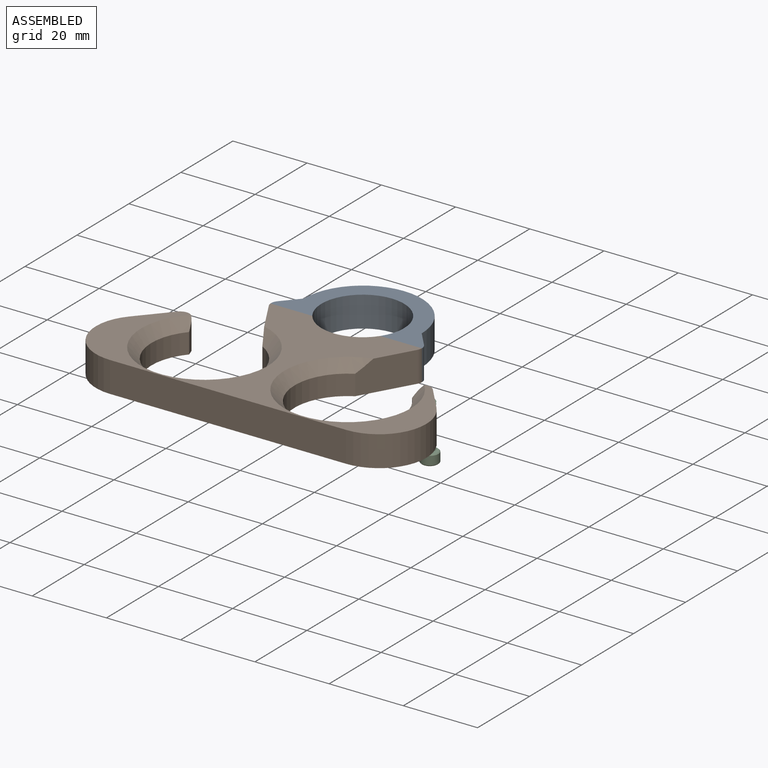
[diagram: assembled view]
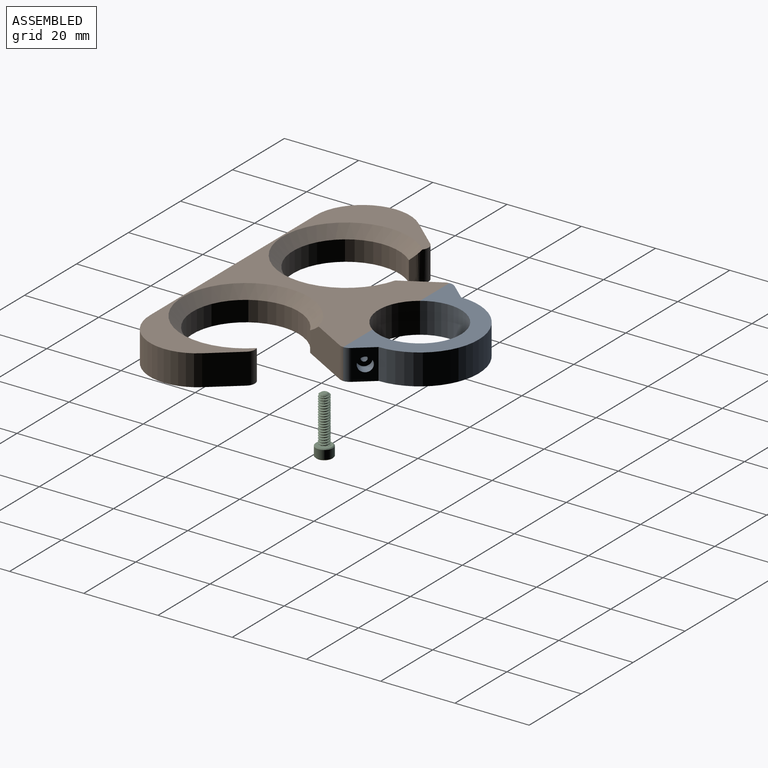
[diagram: assembled view, second angle]
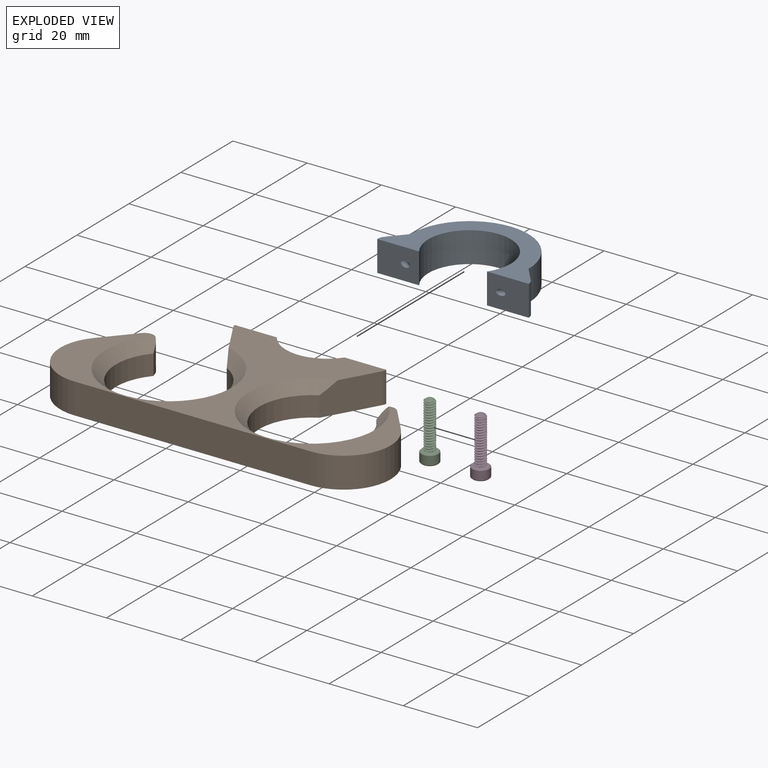
[diagram: exploded view]
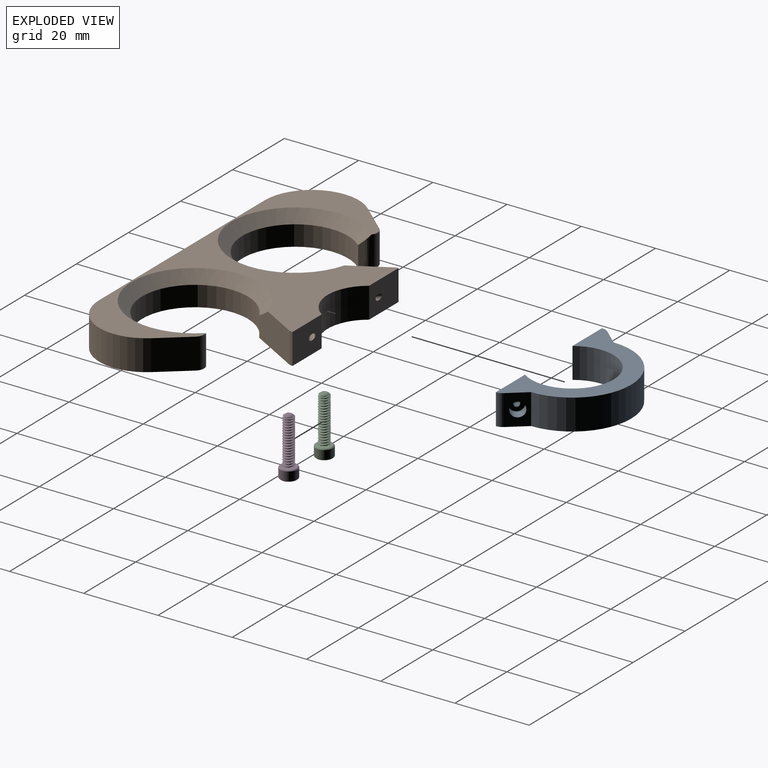
[diagram: exploded view, second angle]
ASSEMBLY  parts=4 mates=2
PART A: 17 faces, bbox 41.2x23.9x8.7 mm
  f0: cylinder r=11.14mm len=22.28mm, axis (0,0,-1), area 400.4mm2, adj f1,f2,f11,f12
  f1: plane 40.82x22.23mm, normal (0,0,1), area 302.6mm2, adj f0,f3,f4,f6,f7,f8,f11,f12
  f2: plane 40.82x22.23mm, normal (0,0,-1), area 302.6mm2, adj f0,f3,f4,f6,f7,f8,f11,f12
  f3: cylinder r=2.54mm len=8.26mm, axis (0,0,-1), area 14.9mm2, adj f1,f2,f6,f12
  f4: cylinder r=2.54mm len=8.26mm, axis (0,0,1), area 16.7mm2, adj f1,f2,f8,f11
  f5: cylinder r=0.79mm len=4.23mm, axis (0.77,0.64,0), area 16.1mm2, adj f9,f12
  f6: plane 8.26x4.69mm, normal (0.77,0.64,0), area 38.9mm2, adj f1,f2,f3,f7,f10
  f7: cylinder r=15.88mm len=31.75mm, axis (0,0,-1), area 411.7mm2, adj f1,f2,f6,f8
  f8: plane 8.26x4.49mm, normal (-0.75,0.66,0), area 49.3mm2, adj f1,f2,f4,f7
  f9: plane 3.81x2.93mm, normal (0.77,0.64,0), area 9.4mm2, adj f5,f10
  f10: cylinder r=1.91mm len=4.96mm, axis (0.77,0.64,0), area 38mm2, adj f6,f9
  f11: plane 11.29x8.26mm, normal (0,-1,0), area 90.1mm2, adj f0,f1,f2,f4,f16
  f12: plane 11.62x8.66mm, normal (0,-1,0), area 89.5mm2, adj f0,f1,f2,f3,f5
  f13: cylinder r=1.91mm len=4.96mm, axis (-0.77,0.64,0), area 38mm2, adj f14,f15
  f14: plane 3.81x2.93mm, normal (-0.77,0.64,0), area 9.4mm2, adj f13,f16
  f15: plane 3.81x2.93mm, normal (0.77,-0.64,0), area 11.4mm2, adj f13
  f16: cylinder r=0.79mm len=4.24mm, axis (-0.77,0.64,0), area 16.1mm2, adj f11,f14
PART B: 26 faces, bbox 89.5x46.1x8.7 mm
  f0: cone r=0mm half-angle=59deg, axis (-0.77,0.64,0), area 2.3mm2, adj f1
  f1: cylinder r=0.79mm len=6.58mm, axis (-0.77,0.64,0), area 31.4mm2, adj f0,f2
  f2: plane 11.29x8.26mm, normal (0,1,0), area 90.1mm2, adj f1,f17,f18,f19,f20
  f3: cylinder r=14.29mm len=28.58mm, axis (0,0,-1), area 385.3mm2, adj f4,f15,f18,f25
  f4: plane 6.9x1.55mm, normal (0.95,0.32,0), area 9.8mm2, adj f3,f5,f18,f25
  f5: cylinder r=2.54mm len=8.26mm, axis (0,0,1), area 42.9mm2, adj f4,f6,f18,f19,f25
  f6: plane 8.26x8.17mm, normal (-0.75,0.66,0), area 89.8mm2, adj f5,f7,f18,f19
  f7: cylinder r=12.7mm len=21.08mm, axis (0,0,-1), area 240.3mm2, adj f6,f8,f18,f19
  f8: plane 63.63x8.26mm, normal (0,-1,0), area 525.2mm2, adj f7,f9,f18,f19
  f9: cylinder r=12.7mm len=20.83mm, axis (0,0,-1), area 237.5mm2, adj f8,f10,f18,f19
  f10: plane 8.26x7.53mm, normal (0.77,0.64,0), area 80.9mm2, adj f9,f11,f18,f19
  f11: cylinder r=2.54mm len=8.26mm, axis (0,0,-1), area 41.9mm2, adj f10,f12,f18,f19,f24
  f12: plane 6.08x0.67mm, normal (-0.95,0.32,0), area 4.1mm2, adj f11,f13,f18,f24
  f13: cylinder r=14.29mm len=28.58mm, axis (0,0,-1), area 385.3mm2, adj f12,f14,f18,f24
  f14: plane 13.67x8.68mm, normal (0.87,-0.49,0), area 119.2mm2, adj f13,f16,f18,f19,f24
  f15: plane 13.82x8.68mm, normal (-0.87,-0.49,0), area 120.6mm2, adj f3,f17,f18,f19,f25
  f16: cylinder r=2.54mm len=8.26mm, axis (0,0,-1), area 10.5mm2, adj f14,f18,f19,f21
  f17: cylinder r=2.54mm len=8.26mm, axis (0,0,1), area 9.3mm2, adj f2,f15,f18,f19
  f18: plane 89.03x44.5mm, normal (0,0,-1), area 1613.2mm2, adj f2,f3,f4,f5,f6,f7,f8,f9
  f19: plane 89.03x44.5mm, normal (0,0,1), area 1165.9mm2, adj f2,f5,f6,f7,f8,f9,f10,f11
  f20: cylinder r=11.14mm len=18.3mm, axis (0,0,-1), area 177.3mm2, adj f2,f18,f19,f21
  f21: plane 11.62x8.66mm, normal (0,1,0), area 89.5mm2, adj f16,f18,f19,f20,f23
  f22: cone r=0mm half-angle=59deg, axis (0.77,0.64,0), area 2.3mm2, adj f23
  f23: cylinder r=0.79mm len=6.58mm, axis (0.77,0.64,0), area 31.4mm2, adj f21,f22
  f24: cone r=17.08mm half-angle=45deg, axis (0,0,1), area 315.1mm2, adj f11,f12,f13,f14,f19
  f25: cone r=14.29mm half-angle=45deg, axis (0,0,1), area 315.9mm2, adj f3,f4,f5,f15,f19
PART C: 104 faces, bbox 5.2x5.2x16.1 mm
  f0: plane 2.75x2.38mm, normal (0,0,-1), area 4.9mm2, adj f1,f99,f100,f101,f102,f103
  f1: plane 2.31x1.71mm, normal (-0.5,0.87,0), area 2.3mm2, adj f0,f2,f99,f103
  f2: cone r=0mm half-angle=45deg, axis (0,0,-1), area 0mm2, adj f1,f3
  f3: plane 4.63x4.63mm, normal (0,0,-1), area 7.8mm2, adj f2,f4,f94,f95,f96,f97,f98
  f4: cone r=0mm half-angle=45deg, axis (0,0,1), area 4.6mm2, adj f3,f5
  f5: cylinder r=2.32mm len=4.65mm, axis (0,0,1), area 34.8mm2, adj f4,f6
  f6: cone r=0mm half-angle=45deg, axis (0,0,-1), area 4.6mm2, adj f5,f7
  f7: plane 4.43x4.43mm, normal (0,0,1), area 9mm2, adj f6,f8,f91,f92,f93
  f8: cylinder r=1.42mm len=1.42mm, axis (0,0,1), area 0.1mm2, adj f7,f9,f91,f93
  f9: cylinder r=1.42mm len=2.85mm, axis (0,0,1), area 0.4mm2, adj f8,f10,f91,f93
  f10: cylinder r=1.42mm len=2.85mm, axis (0,0,1), area 0.4mm2, adj f9,f11,f91,f93
  f11: cylinder r=1.42mm len=2.85mm, axis (0,0,1), area 0.4mm2, adj f10,f12,f91,f93
  f12: cylinder r=1.42mm len=2.85mm, axis (0,0,1), area 0.4mm2, adj f11,f13,f91,f93
  f13: cylinder r=1.42mm len=2.85mm, axis (0,0,1), area 0.4mm2, adj f12,f14,f91,f93
  f14: cylinder r=1.42mm len=2.85mm, axis (0,0,1), area 0.4mm2, adj f13,f15,f91,f93
  f15: cylinder r=1.42mm len=2.85mm, axis (0,0,1), area 0.4mm2, adj f14,f16,f91,f93
  f16: cylinder r=1.42mm len=2.85mm, axis (0,0,1), area 0.4mm2, adj f15,f17,f91,f93
  f17: cylinder r=1.42mm len=2.85mm, axis (0,0,1), area 0.4mm2, adj f16,f18,f91,f93
  f18: cylinder r=1.42mm len=2.85mm, axis (0,0,1), area 0.4mm2, adj f17,f19,f91,f93
  f19: cylinder r=1.42mm len=2.85mm, axis (0,0,1), area 0.4mm2, adj f18,f20,f91,f93
  f20: cylinder r=1.42mm len=2.85mm, axis (0,0,1), area 0.4mm2, adj f19,f21,f91,f93
  f21: cylinder r=1.42mm len=2.85mm, axis (0,0,1), area 0.4mm2, adj f20,f22,f91,f93
  f22: cylinder r=1.42mm len=2.85mm, axis (0,0,1), area 0.4mm2, adj f21,f23,f91,f93
  f23: cylinder r=1.42mm len=2.85mm, axis (0,0,1), area 0.4mm2, adj f22,f24,f91,f93
  f24: cylinder r=1.42mm len=2.85mm, axis (0,0,1), area 0.4mm2, adj f23,f25,f91,f93
  f25: cylinder r=1.42mm len=2.85mm, axis (0,0,1), area 0.4mm2, adj f24,f26,f91,f93
  f26: cylinder r=1.42mm len=2.85mm, axis (0,0,1), area 0.4mm2, adj f25,f27,f91,f93
  f27: cylinder r=1.42mm len=2.85mm, axis (0,0,1), area 0.4mm2, adj f26,f28,f91,f93
  f28: cylinder r=1.42mm len=2.85mm, axis (0,0,1), area 0.4mm2, adj f27,f29,f91,f93
  f29: cylinder r=1.42mm len=2.85mm, axis (0,0,1), area 0.4mm2, adj f28,f30,f91,f93
  f30: cylinder r=1.42mm len=2.85mm, axis (0,0,1), area 0.4mm2, adj f29,f31,f91,f93
  f31: cylinder r=1.42mm len=2.85mm, axis (0,0,1), area 0.4mm2, adj f30,f32,f91,f93
  f32: cylinder r=1.42mm len=2.85mm, axis (0,0,1), area 0.4mm2, adj f31,f33,f91,f93
  f33: cylinder r=1.42mm len=2.85mm, axis (0,0,1), area 0.4mm2, adj f32,f34,f91,f93
  f34: cylinder r=1.42mm len=2.85mm, axis (0,0,1), area 0.4mm2, adj f33,f35,f91,f93
  f35: cylinder r=1.42mm len=2.85mm, axis (0,0,1), area 0.4mm2, adj f34,f36,f91,f93
  f36: cylinder r=1.42mm len=2.85mm, axis (0,0,1), area 0.4mm2, adj f35,f37,f91,f93
  f37: cylinder r=1.42mm len=2.85mm, axis (0,0,1), area 0.4mm2, adj f36,f38,f91,f93
  f38: cylinder r=1.42mm len=2.85mm, axis (0,0,1), area 0.4mm2, adj f37,f39,f91,f93
  f39: cylinder r=1.42mm len=2.85mm, axis (0,0,1), area 0.4mm2, adj f38,f40,f91,f93
  f40: cylinder r=1.42mm len=2.85mm, axis (0,0,1), area 0.4mm2, adj f39,f41,f91,f93
  f41: cylinder r=1.42mm len=2.85mm, axis (0,0,1), area 0.4mm2, adj f40,f42,f91,f93
  f42: cylinder r=1.42mm len=2.85mm, axis (0,0,1), area 0.4mm2, adj f41,f43,f91,f93
  f43: cylinder r=1.42mm len=2.85mm, axis (0,0,1), area 0.4mm2, adj f42,f44,f91,f93
  f44: cylinder r=1.42mm len=2.85mm, axis (0,0,1), area 0.4mm2, adj f43,f45,f91,f93
  f45: cylinder r=1.42mm len=2.85mm, axis (0,0,1), area 0.4mm2, adj f44,f46,f91,f93
  f46: cylinder r=1.42mm len=2.85mm, axis (0,0,1), area 0.4mm2, adj f45,f47,f91,f93
  f47: cylinder r=1.42mm len=1.1mm, axis (0,0,1), area 0.1mm2, adj f46,f48,f91,f93
  f48: cone r=0mm half-angle=55deg, axis (0,0,-1), area 2.2mm2, adj f47,f49,f89,f90,f91,f93
  f49: cylinder r=1.01mm len=0.57mm, axis (0,0,-1), area 0mm2, adj f48,f50,f93
  f50: cylinder r=1.01mm len=2.02mm, axis (0,0,-1), area 0.3mm2, adj f49,f51,f89,f91,f93
  f51: cylinder r=1.01mm len=2.02mm, axis (0,0,-1), area 0.3mm2, adj f50,f52,f91,f93
  f52: cylinder r=1.01mm len=2.02mm, axis (0,0,-1), area 0.3mm2, adj f51,f53,f91,f93
  f53: cylinder r=1.01mm len=2.02mm, axis (0,0,-1), area 0.3mm2, adj f52,f54,f91,f93
  f54: cylinder r=1.01mm len=2.02mm, axis (0,0,-1), area 0.3mm2, adj f53,f55,f91,f93
  f55: cylinder r=1.01mm len=2.02mm, axis (0,0,-1), area 0.3mm2, adj f54,f56,f91,f93
  f56: cylinder r=1.01mm len=2.02mm, axis (0,0,-1), area 0.3mm2, adj f55,f57,f91,f93
  f57: cylinder r=1.01mm len=2.02mm, axis (0,0,-1), area 0.3mm2, adj f56,f58,f91,f93
  f58: cylinder r=1.01mm len=2.02mm, axis (0,0,-1), area 0.3mm2, adj f57,f59,f91,f93
  f59: cylinder r=1.01mm len=2.02mm, axis (0,0,-1), area 0.3mm2, adj f58,f60,f91,f93
  f60: cylinder r=1.01mm len=2.02mm, axis (0,0,-1), area 0.3mm2, adj f59,f61,f91,f93
  f61: cylinder r=1.01mm len=2.02mm, axis (0,0,-1), area 0.3mm2, adj f60,f62,f91,f93
  f62: cylinder r=1.01mm len=2.02mm, axis (0,0,-1), area 0.3mm2, adj f61,f63,f91,f93
  f63: cylinder r=1.01mm len=2.02mm, axis (0,0,-1), area 0.3mm2, adj f62,f64,f91,f93
  f64: cylinder r=1.01mm len=2.02mm, axis (0,0,-1), area 0.3mm2, adj f63,f65,f91,f93
  f65: cylinder r=1.01mm len=2.02mm, axis (0,0,-1), area 0.3mm2, adj f64,f66,f91,f93
  f66: cylinder r=1.01mm len=2.02mm, axis (0,0,-1), area 0.3mm2, adj f65,f67,f91,f93
  f67: cylinder r=1.01mm len=2.02mm, axis (0,0,-1), area 0.3mm2, adj f66,f68,f91,f93
  f68: cylinder r=1.01mm len=2.02mm, axis (0,0,-1), area 0.3mm2, adj f67,f69,f91,f93
  f69: cylinder r=1.01mm len=2.02mm, axis (0,0,-1), area 0.3mm2, adj f68,f70,f91,f93
  f70: cylinder r=1.01mm len=2.02mm, axis (0,0,-1), area 0.3mm2, adj f69,f71,f91,f93
  f71: cylinder r=1.01mm len=2.02mm, axis (0,0,-1), area 0.3mm2, adj f70,f72,f91,f93
  f72: cylinder r=1.01mm len=2.02mm, axis (0,0,-1), area 0.3mm2, adj f71,f73,f91,f93
  f73: cylinder r=1.01mm len=2.02mm, axis (0,0,-1), area 0.3mm2, adj f72,f74,f91,f93
  f74: cylinder r=1.01mm len=2.02mm, axis (0,0,-1), area 0.3mm2, adj f73,f75,f91,f93
  f75: cylinder r=1.01mm len=2.02mm, axis (0,0,-1), area 0.3mm2, adj f74,f76,f91,f93
  f76: cylinder r=1.01mm len=2.02mm, axis (0,0,-1), area 0.3mm2, adj f75,f77,f91,f93
  f77: cylinder r=1.01mm len=2.02mm, axis (0,0,-1), area 0.3mm2, adj f76,f78,f91,f93
  f78: cylinder r=1.01mm len=2.02mm, axis (0,0,-1), area 0.3mm2, adj f77,f79,f91,f93
  f79: cylinder r=1.01mm len=2.02mm, axis (0,0,-1), area 0.3mm2, adj f78,f80,f91,f93
  f80: cylinder r=1.01mm len=2.02mm, axis (0,0,-1), area 0.3mm2, adj f79,f81,f91,f93
  f81: cylinder r=1.01mm len=2.02mm, axis (0,0,-1), area 0.3mm2, adj f80,f82,f91,f93
  f82: cylinder r=1.01mm len=2.02mm, axis (0,0,-1), area 0.3mm2, adj f81,f83,f91,f93
  f83: cylinder r=1.01mm len=2.02mm, axis (0,0,-1), area 0.3mm2, adj f82,f84,f91,f93
  f84: cylinder r=1.01mm len=2.02mm, axis (0,0,-1), area 0.3mm2, adj f83,f85,f91,f93
  f85: cylinder r=1.01mm len=2.02mm, axis (0,0,-1), area 0.3mm2, adj f84,f86,f91,f93
  f86: cylinder r=1.01mm len=2.02mm, axis (0,0,-1), area 0.3mm2, adj f85,f87,f91,f93
  f87: cylinder r=1.01mm len=2.02mm, axis (0,0,-1), area 0.3mm2, adj f86,f88,f91,f93
  f88: cylinder r=1.01mm len=2.02mm, axis (0,0,-1), area 0.3mm2, adj f87,f91,f92,f93
  f89: cone r=0mm half-angle=55deg, axis (0,0,-1), area 1.3mm2, adj f48,f50,f90,f91
  f90: plane 1.51x1.51mm, normal (0,0,1), area 1.8mm2, adj f48,f89
  f91: bspline ~13x2.84mm, area 71.1mm2, adj f7,f8,f9,f10,f11,f12,f13,f14
  f92: cylinder r=1.01mm len=1.01mm, axis (0,0,-1), area 0.1mm2, adj f7,f88,f91,f93
  f93: bspline ~12.76x2.84mm, area 71mm2, adj f7,f8,f9,f10,f11,f12,f13,f14
  f94: cone r=0mm half-angle=45deg, axis (0,0,-1), area 0mm2, adj f3,f103
  f95: cone r=0mm half-angle=45deg, axis (0,0,-1), area 0.2mm2, adj f3,f102
  f96: cone r=0mm half-angle=45deg, axis (0,0,-1), area 0mm2, adj f3,f101
  f97: cone r=0mm half-angle=45deg, axis (0,0,-1), area 0mm2, adj f3,f100
  f98: cone r=0mm half-angle=45deg, axis (0,0,-1), area 0mm2, adj f3,f99
  f99: plane 2.31x1.9mm, normal (-1,0,0), area 2.3mm2, adj f0,f1,f98,f100
  f100: plane 2.31x1.71mm, normal (-0.5,-0.87,0), area 2.3mm2, adj f0,f97,f99,f101
  f101: plane 2.31x1.71mm, normal (0.5,-0.87,0), area 2.3mm2, adj f0,f96,f100,f102
  f102: plane 1.92x1.51mm, normal (1,0,0), area 2.3mm2, adj f0,f95,f101,f103
  f103: plane 2.31x1.71mm, normal (0.5,0.87,0), area 2.3mm2, adj f0,f1,f94,f102
PART D: same geometry as C
PLACE A t=(-10.28,13.33,-17.54)mm
PLACE B t=(-10.28,13.33,-17.54)mm
PLACE C t=(13.93,4.55,-19.51)mm
PLACE D t=(13.93,4.55,-19.51)mm
MATE pin_slot A.f11 <-> B.f2  axis (0,-1,0) through (-23.1,6.98,-13.42)mm
MATE parallel A.f12 <-> B.f21  axis (0,-1,0) through (10.09,6.98,-13.42)mm
